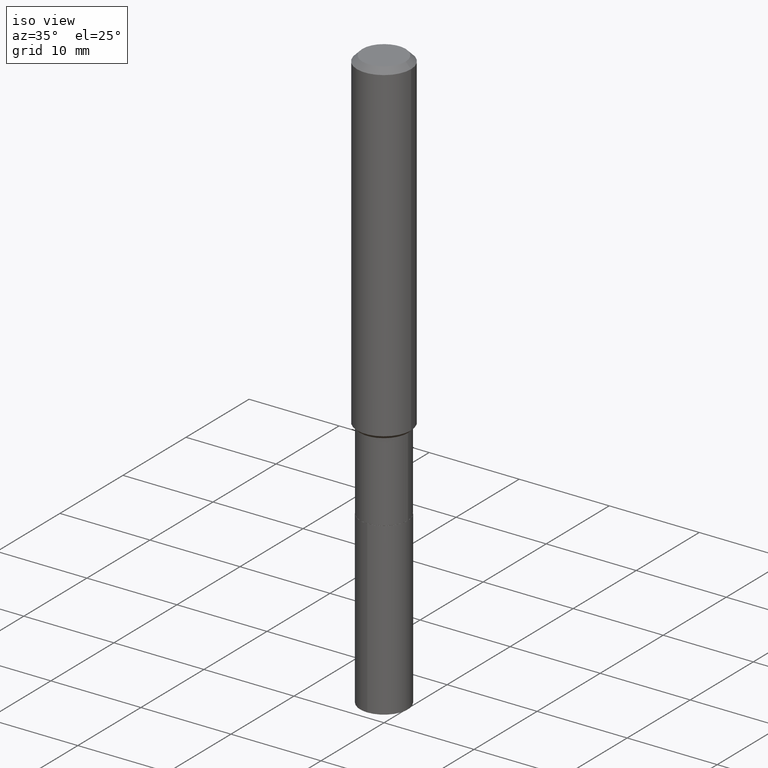
[diagram: clean part render]
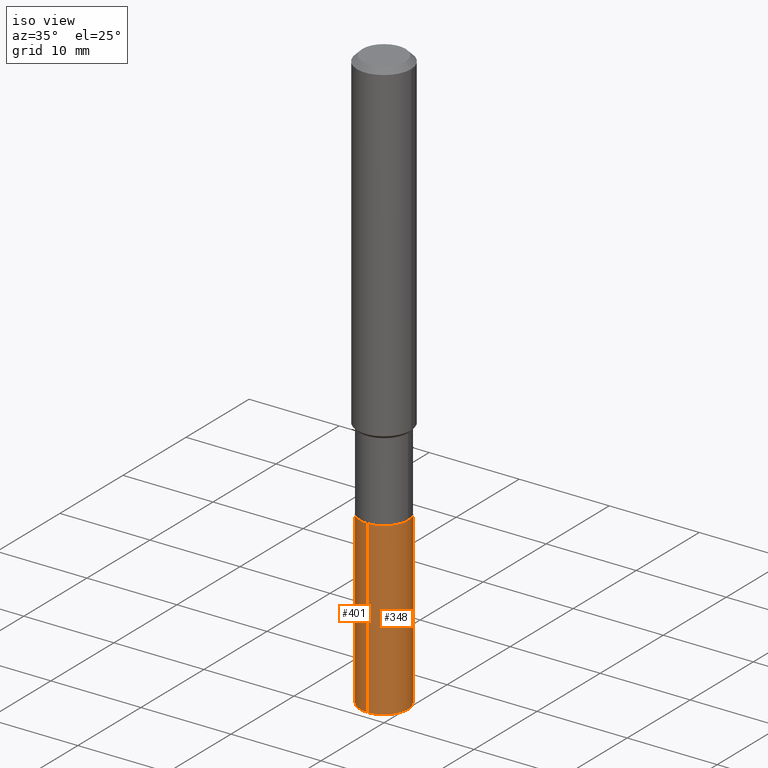
[diagram: same view with one multi-face feature highlighted, each face labeled with its STEP entity id]
A machine part, iso view. The highlighted faces form ONE feature: a constant-radius fillet chain: 2 tangent blend faces with common blend radius 2.6505 mm. The faces share edges in the B-rep.
Their STEP definitions:
[1] entity #348 (Cylinder):
#20 = DIRECTION ( 'NONE',  ( -2.445580598395875501E-29, 3.491321246034550326E-15, 1.000000000000000000 ) ) ;
#44 = FACE_OUTER_BOUND ( 'NONE', #244, .T. ) ;
#88 = ORIENTED_EDGE ( 'NONE', *, *, #212, .T. ) ;
#112 = DIRECTION ( 'NONE',  ( -6.982962677686265922E-15, -1.000000000000000000, 5.235932905920965262E-15 ) ) ;
#125 = VECTOR ( 'NONE', #413, 39.37007874015748143 ) ;
#127 = DIRECTION ( 'NONE',  ( -6.982962677686265922E-15, -1.000000000000000000, 2.617966452960482631E-15 ) ) ;
#129 = DIRECTION ( 'NONE',  ( -6.982962677686265922E-15, -1.000000000000000000, 2.617966452960482631E-15 ) ) ;
#132 = LINE ( 'NONE', #360, #164 ) ;
#140 = CARTESIAN_POINT ( 'NONE',  ( -7.286721554165174458E-16, -0.1043500000000063127, -1.810999999999999721 ) ) ;
#163 = VERTEX_POINT ( 'NONE', #140 ) ;
#164 = VECTOR ( 'NONE', #170, 39.37007874015748143 ) ;
#170 = DIRECTION ( 'NONE',  ( -2.445580598395875221E-29, 3.491321246034550326E-15, 1.000000000000000000 ) ) ;
#188 = VERTEX_POINT ( 'NONE', #259 ) ;
#193 = LINE ( 'NONE', #304, #125 ) ;
#200 = DIRECTION ( 'NONE',  ( -2.445580598395875501E-29, 3.491321246034550326E-15, 1.000000000000000000 ) ) ;
#209 = CARTESIAN_POINT ( 'NONE',  ( 7.414513447657270492E-16, 0.1043499999999936700, -1.811000000000000165 ) ) ;
#210 = VERTEX_POINT ( 'NONE', #265 ) ;
#212 = EDGE_CURVE ( 'NONE', #210, #383, #193, .T. ) ;
#220 = AXIS2_PLACEMENT_3D ( 'NONE', #285, #20, #129 ) ;
#230 = CYLINDRICAL_SURFACE ( 'NONE', #483, 0.1043499999999999844 ) ;
#244 = EDGE_LOOP ( 'NONE', ( #302, #88, #366, #485 ) ) ;
#259 = CARTESIAN_POINT ( 'NONE',  ( -7.286721554164994006E-16, -0.1043500000000089217, -2.557295441869579466 ) ) ;
#265 = CARTESIAN_POINT ( 'NONE',  ( 7.414513447657269506E-16, 0.1043499999999911027, -2.557295441869580799 ) ) ;
#268 = DIRECTION ( 'NONE',  ( -2.445580598395875501E-29, 3.491321246034550326E-15, 1.000000000000000000 ) ) ;
#285 = CARTESIAN_POINT ( 'NONE',  ( 4.428744008001282238E-29, -6.323072704644935995E-15, -1.810999999999999943 ) ) ;
#293 = EDGE_CURVE ( 'NONE', #188, #210, #444, .T. ) ;
#302 = ORIENTED_EDGE ( 'NONE', *, *, #293, .T. ) ;
#304 = CARTESIAN_POINT ( 'NONE',  ( 7.414513447657086096E-16, 0.1043499999999936700, -1.811000000000000165 ) ) ;
#348 = ADVANCED_FACE ( 'NONE', ( #44 ), #230, .T. ) ;
#360 = CARTESIAN_POINT ( 'NONE',  ( -7.286721554165174458E-16, -0.1043500000000063127, -1.810999999999999721 ) ) ;
#366 = ORIENTED_EDGE ( 'NONE', *, *, #438, .F. ) ;
#375 = AXIS2_PLACEMENT_3D ( 'NONE', #461, #268, #112 ) ;
#382 = CARTESIAN_POINT ( 'NONE',  ( 4.428744008001282238E-29, -6.323072704644935995E-15, -1.810999999999999943 ) ) ;
#383 = VERTEX_POINT ( 'NONE', #209 ) ;
#413 = DIRECTION ( 'NONE',  ( -2.445580598395875221E-29, 3.491321246034550326E-15, 1.000000000000000000 ) ) ;
#424 = CIRCLE ( 'NONE', #220, 0.1043499999999999844 ) ;
#438 = EDGE_CURVE ( 'NONE', #163, #383, #424, .T. ) ;
#444 = CIRCLE ( 'NONE', #375, 0.1043499999999999844 ) ;
#461 = CARTESIAN_POINT ( 'NONE',  ( 6.253869661308804217E-29, -8.928629836662944944E-15, -2.557295441869579911 ) ) ;
#469 = EDGE_CURVE ( 'NONE', #188, #163, #132, .T. ) ;
#483 = AXIS2_PLACEMENT_3D ( 'NONE', #382, #200, #127 ) ;
#485 = ORIENTED_EDGE ( 'NONE', *, *, #469, .F. ) ;
[2] entity #401 (Cylinder):
#26 = EDGE_CURVE ( 'NONE', #210, #188, #248, .T. ) ;
#57 = DIRECTION ( 'NONE',  ( -6.982962677686265922E-15, -1.000000000000000000, 2.617966452960482631E-15 ) ) ;
#65 = AXIS2_PLACEMENT_3D ( 'NONE', #379, #356, #79 ) ;
#79 = DIRECTION ( 'NONE',  ( -6.982962677686265922E-15, -1.000000000000000000, 2.617966452960482631E-15 ) ) ;
#120 = CIRCLE ( 'NONE', #65, 0.1043499999999999844 ) ;
#125 = VECTOR ( 'NONE', #413, 39.37007874015748143 ) ;
#132 = LINE ( 'NONE', #360, #164 ) ;
#133 = EDGE_LOOP ( 'NONE', ( #159, #249, #327, #428 ) ) ;
#140 = CARTESIAN_POINT ( 'NONE',  ( -7.286721554165174458E-16, -0.1043500000000063127, -1.810999999999999721 ) ) ;
#159 = ORIENTED_EDGE ( 'NONE', *, *, #212, .F. ) ;
#163 = VERTEX_POINT ( 'NONE', #140 ) ;
#164 = VECTOR ( 'NONE', #170, 39.37007874015748143 ) ;
#170 = DIRECTION ( 'NONE',  ( -2.445580598395875221E-29, 3.491321246034550326E-15, 1.000000000000000000 ) ) ;
#172 = CYLINDRICAL_SURFACE ( 'NONE', #474, 0.1043499999999999844 ) ;
#181 = CARTESIAN_POINT ( 'NONE',  ( 6.253869661308804217E-29, -8.928629836662944944E-15, -2.557295441869579911 ) ) ;
#188 = VERTEX_POINT ( 'NONE', #259 ) ;
#193 = LINE ( 'NONE', #304, #125 ) ;
#207 = AXIS2_PLACEMENT_3D ( 'NONE', #181, #256, #218 ) ;
#209 = CARTESIAN_POINT ( 'NONE',  ( 7.414513447657270492E-16, 0.1043499999999936700, -1.811000000000000165 ) ) ;
#210 = VERTEX_POINT ( 'NONE', #265 ) ;
#212 = EDGE_CURVE ( 'NONE', #210, #383, #193, .T. ) ;
#218 = DIRECTION ( 'NONE',  ( -6.982962677686265922E-15, -1.000000000000000000, 5.235932905920965262E-15 ) ) ;
#248 = CIRCLE ( 'NONE', #207, 0.1043499999999999844 ) ;
#249 = ORIENTED_EDGE ( 'NONE', *, *, #26, .T. ) ;
#256 = DIRECTION ( 'NONE',  ( -2.445580598395875501E-29, 3.491321246034550326E-15, 1.000000000000000000 ) ) ;
#259 = CARTESIAN_POINT ( 'NONE',  ( -7.286721554164994006E-16, -0.1043500000000089217, -2.557295441869579466 ) ) ;
#265 = CARTESIAN_POINT ( 'NONE',  ( 7.414513447657269506E-16, 0.1043499999999911027, -2.557295441869580799 ) ) ;
#282 = CARTESIAN_POINT ( 'NONE',  ( 4.428744008001282238E-29, -6.323072704644935995E-15, -1.810999999999999943 ) ) ;
#304 = CARTESIAN_POINT ( 'NONE',  ( 7.414513447657086096E-16, 0.1043499999999936700, -1.811000000000000165 ) ) ;
#315 = EDGE_CURVE ( 'NONE', #383, #163, #120, .T. ) ;
#327 = ORIENTED_EDGE ( 'NONE', *, *, #469, .T. ) ;
#356 = DIRECTION ( 'NONE',  ( -2.445580598395875501E-29, 3.491321246034550326E-15, 1.000000000000000000 ) ) ;
#357 = DIRECTION ( 'NONE',  ( -2.445580598395875501E-29, 3.491321246034550326E-15, 1.000000000000000000 ) ) ;
#360 = CARTESIAN_POINT ( 'NONE',  ( -7.286721554165174458E-16, -0.1043500000000063127, -1.810999999999999721 ) ) ;
#379 = CARTESIAN_POINT ( 'NONE',  ( 4.428744008001282238E-29, -6.323072704644935995E-15, -1.810999999999999943 ) ) ;
#383 = VERTEX_POINT ( 'NONE', #209 ) ;
#401 = ADVANCED_FACE ( 'NONE', ( #435 ), #172, .T. ) ;
#413 = DIRECTION ( 'NONE',  ( -2.445580598395875221E-29, 3.491321246034550326E-15, 1.000000000000000000 ) ) ;
#428 = ORIENTED_EDGE ( 'NONE', *, *, #315, .F. ) ;
#435 = FACE_OUTER_BOUND ( 'NONE', #133, .T. ) ;
#469 = EDGE_CURVE ( 'NONE', #188, #163, #132, .T. ) ;
#474 = AXIS2_PLACEMENT_3D ( 'NONE', #282, #357, #57 ) ;